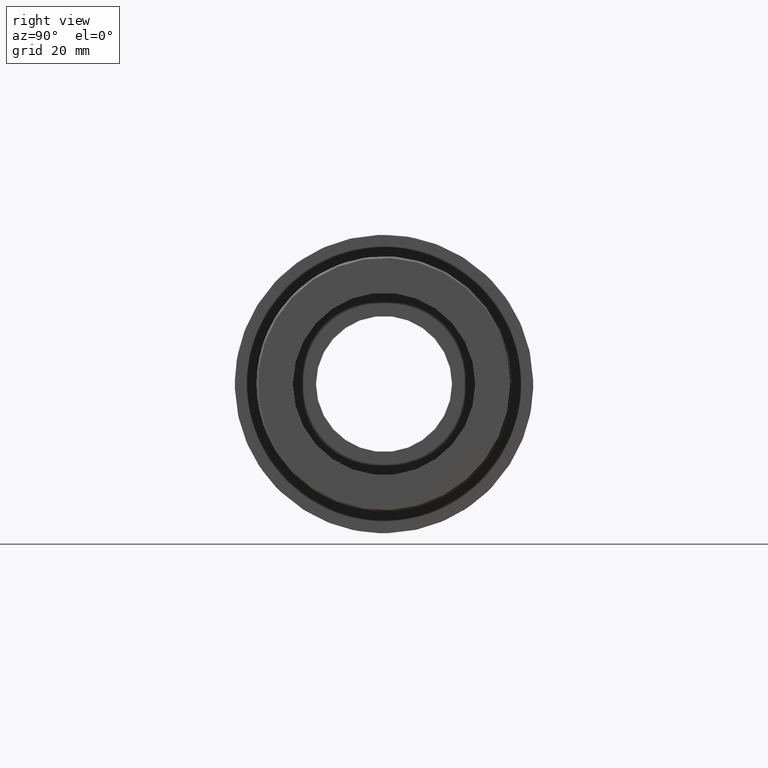
[diagram: clean part render]
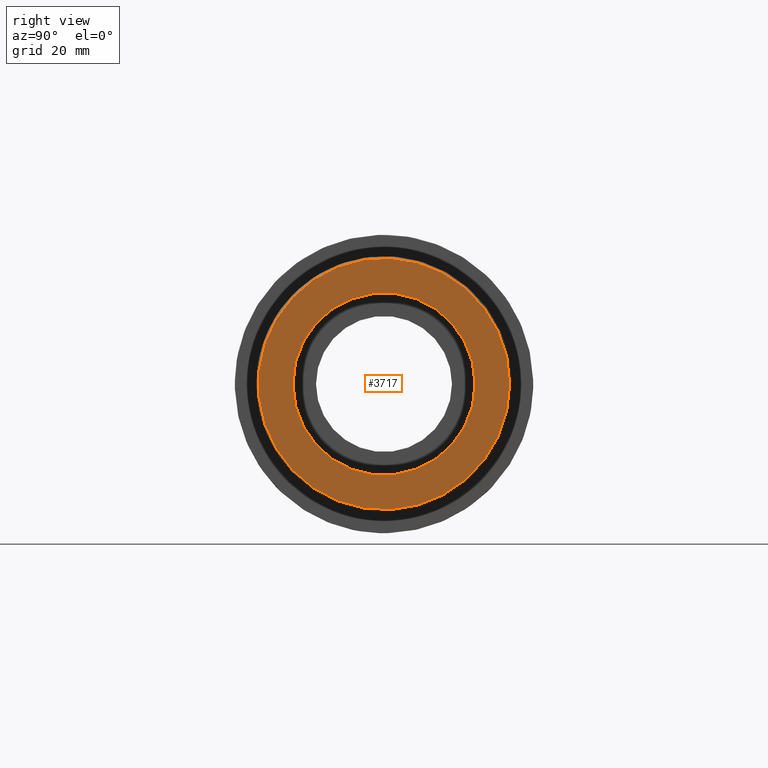
[diagram: same view with one face highlighted and labeled with its STEP entity id]
A machine part, right view. The second image highlights one B-rep face of the part: STEP entity #3717.
In plain terms, the highlighted planar face has unit normal (1, 0, 0).
Its self-contained STEP definition (entity closure, byte-faithful):
#60=FACE_BOUND('',#976,.T.);
#108=PLANE('',#4009);
#745=FACE_OUTER_BOUND('',#975,.T.);
#975=EDGE_LOOP('',(#2873));
#976=EDGE_LOOP('',(#2874));
#1364=CIRCLE('',#4006,30.91347);
#1366=CIRCLE('',#4010,22.4225);
#1672=VERTEX_POINT('',#6168);
#1674=VERTEX_POINT('',#6174);
#2121=EDGE_CURVE('',#1672,#1672,#1364,.T.);
#2123=EDGE_CURVE('',#1674,#1674,#1366,.T.);
#2873=ORIENTED_EDGE('',*,*,#2121,.F.);
#2874=ORIENTED_EDGE('',*,*,#2123,.F.);
#3717=ADVANCED_FACE('',(#745,#60),#108,.T.);
#4006=AXIS2_PLACEMENT_3D('',#6169,#4648,#4649);
#4009=AXIS2_PLACEMENT_3D('',#6173,#4654,#4655);
#4010=AXIS2_PLACEMENT_3D('',#6175,#4656,#4657);
#4648=DIRECTION('center_axis',(-1.,0.,0.));
#4649=DIRECTION('ref_axis',(0.,-1.,1.83697019872103E-16));
#4654=DIRECTION('center_axis',(1.,0.,0.));
#4655=DIRECTION('ref_axis',(0.,0.,-1.));
#4656=DIRECTION('center_axis',(1.,0.,0.));
#4657=DIRECTION('ref_axis',(0.,0.,-1.));
#6168=CARTESIAN_POINT('',(0.,30.91347,-9.46452052150943E-15));
#6169=CARTESIAN_POINT('Origin',(0.,0.,0.));
#6173=CARTESIAN_POINT('Origin',(0.,22.4225,0.));
#6174=CARTESIAN_POINT('',(0.,22.4225,0.));
#6175=CARTESIAN_POINT('Origin',(0.,0.,0.));